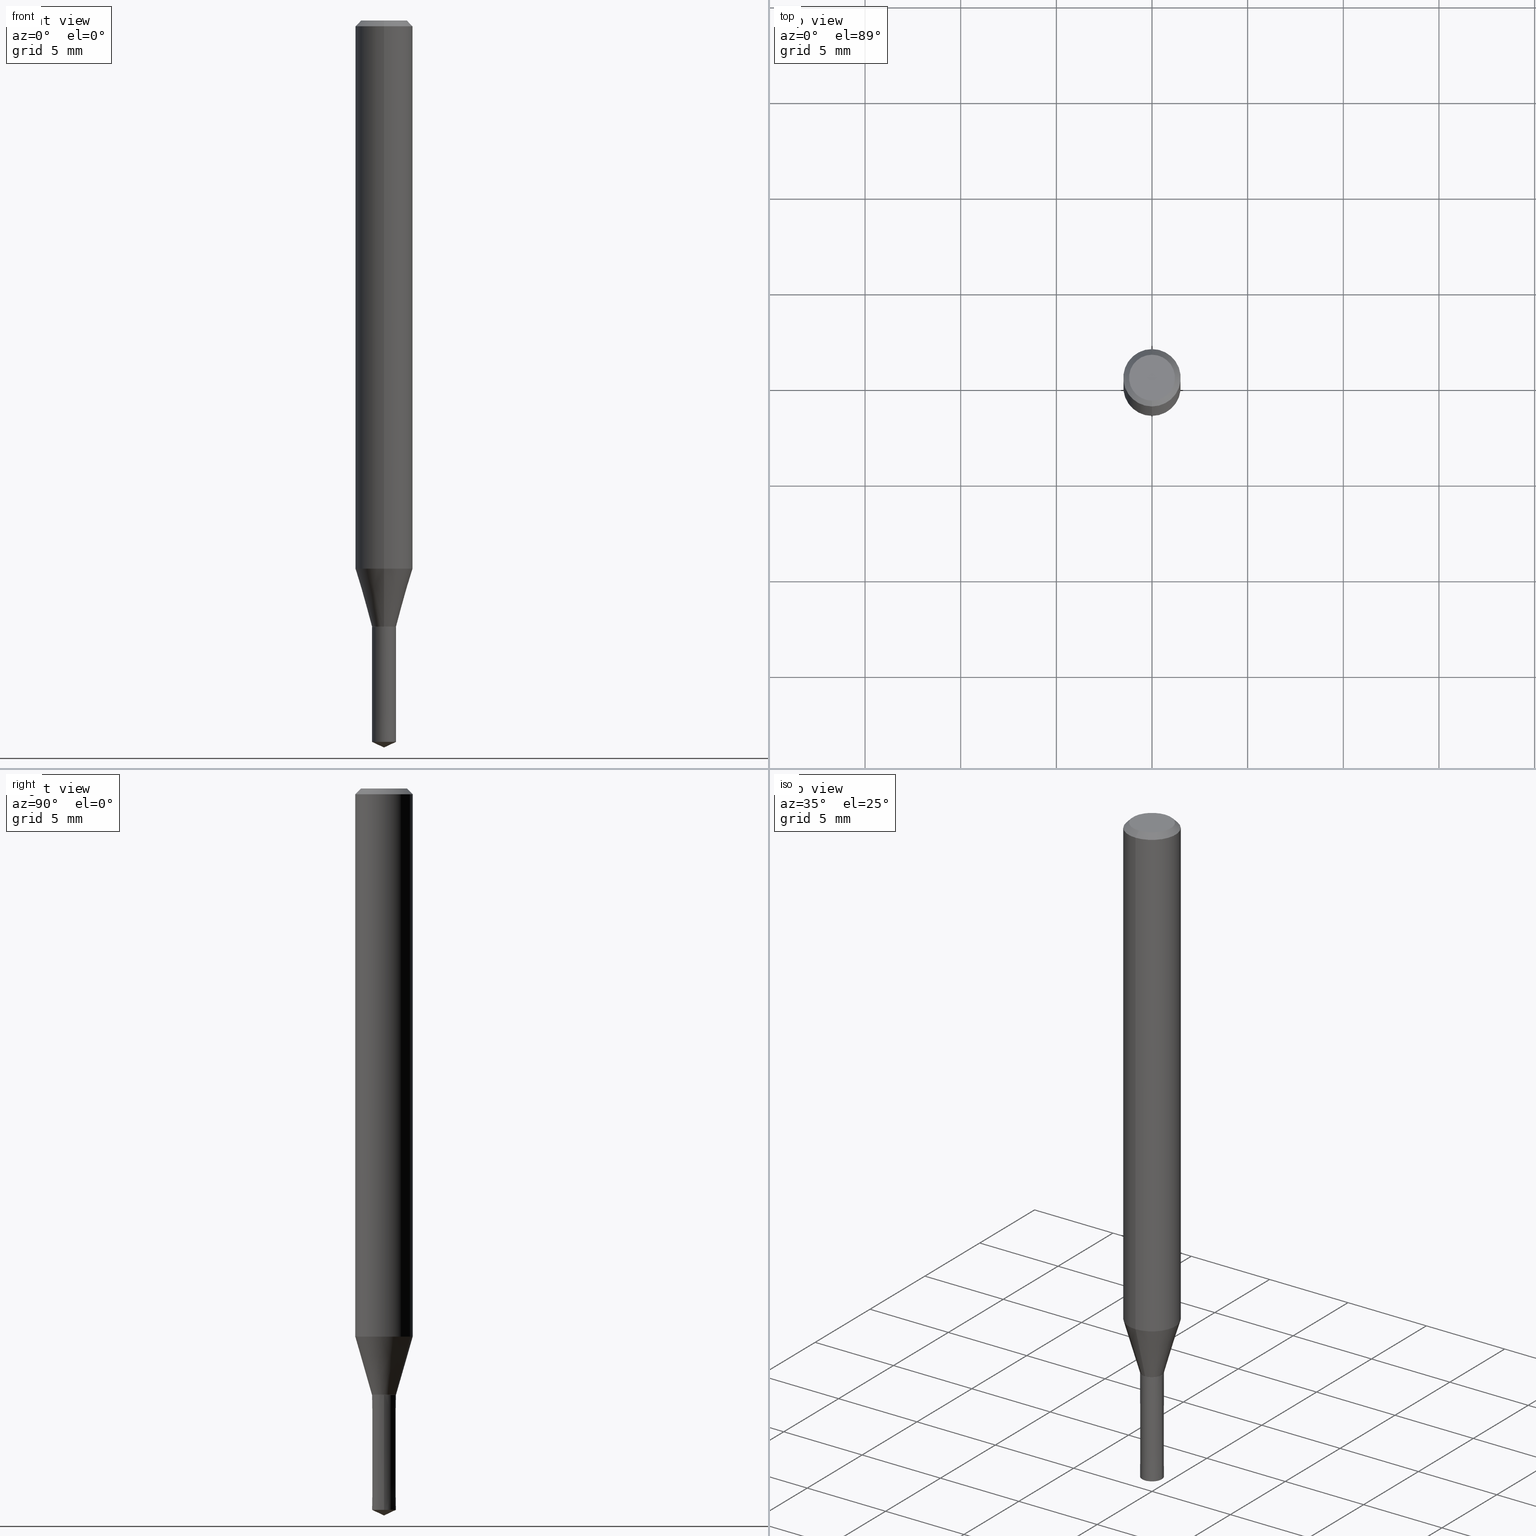
[diagram: canonical four-view strip — front | top / right | iso, engineering-drawing reading convention]
A machine part, canonical four-view strip (front | top / right | iso — engineering-drawing reading convention). The complete STEP part file that produces these views, byte-faithful:
ISO-10303-21;
HEADER;
FILE_DESCRIPTION(('no description'),'unknown implementation level');
FILE_NAME('UTDSX2125-063-Huellk.stp','  ',('CIMSOURCE GmbH'),('CADClick - KiM GmbH - www.kimweb.de'),'unknown preprocess','ACIS','unknown authorization');
FILE_SCHEMA(('automotive_design'));
ENDSEC;
DATA;
#1=MECHANICAL_DESIGN_GEOMETRIC_PRESENTATION_REPRESENTATION(' ',(#14,#15,#16,#17,#18,#19,#20,#21,#22,#23,#24,#25,#26,#27,#28,#29,#30,#31,#32,#33,#34,#35,#36,#37,#38,#39,#40,#41,#42,#43,#44,#45,#46,#47,#48,#49,#50,#51,#52,#53,#54,#55,#56,#57,#58,#59,#60,#61,#62,#63,#64,#65,#66,#67,#68,#69,#70,#71),#10);
#2=PRODUCT_DEFINITION_CONTEXT('',#72,'design');
#3=APPLICATION_PROTOCOL_DEFINITION('INTERNATIONAL STANDARD','automotive_design',1994,#72);
#4=PRODUCT_CATEGORY_RELATIONSHIP('NONE','NONE',#73,#74);
#5=SHAPE_DEFINITION_REPRESENTATION(#75,#76);
#6=PRODUCT_DEFINITION_CONTEXT('',#77,'design');
#7=APPLICATION_PROTOCOL_DEFINITION('INTERNATIONAL STANDARD','automotive_design',1994,#77);
#8=PRODUCT_CATEGORY_RELATIONSHIP('NONE','NONE',#78,#79);
#9=SHAPE_DEFINITION_REPRESENTATION(#80,#81);
#10= (GEOMETRIC_REPRESENTATION_CONTEXT(3)GLOBAL_UNCERTAINTY_ASSIGNED_CONTEXT((#84))GLOBAL_UNIT_ASSIGNED_CONTEXT((#86,#87,#88))REPRESENTATION_CONTEXT('NONE','WORKSPACE'));
#14=STYLED_ITEM('',(#90),#91);
#15=STYLED_ITEM('',(#92),#93);
#16=STYLED_ITEM('',(#94),#95);
#17=STYLED_ITEM('',(#96),#97);
#18=STYLED_ITEM('',(#98),#99);
#19=STYLED_ITEM('',(#100),#101);
#20=STYLED_ITEM('',(#102),#103);
#21=STYLED_ITEM('',(#104),#105);
#22=STYLED_ITEM('',(#106),#107);
#23=STYLED_ITEM('',(#108),#109);
#24=STYLED_ITEM('',(#110),#111);
#25=STYLED_ITEM('',(#112),#113);
#26=STYLED_ITEM('',(#114),#115);
#27=STYLED_ITEM('',(#116),#117);
#28=STYLED_ITEM('',(#118),#119);
#29=STYLED_ITEM('',(#120),#121);
#30=STYLED_ITEM('',(#122),#123);
#31=STYLED_ITEM('',(#124),#125);
#32=STYLED_ITEM('',(#126),#127);
#33=STYLED_ITEM('',(#128),#129);
#34=STYLED_ITEM('',(#130),#131);
#35=STYLED_ITEM('',(#132),#133);
#36=STYLED_ITEM('',(#134),#135);
#37=STYLED_ITEM('',(#136),#137);
#38=STYLED_ITEM('',(#138),#139);
#39=STYLED_ITEM('',(#140),#141);
#40=STYLED_ITEM('',(#142),#143);
#41=STYLED_ITEM('',(#144),#145);
#42=STYLED_ITEM('',(#146),#147);
#43=STYLED_ITEM('',(#148),#149);
#44=STYLED_ITEM('',(#150),#151);
#45=STYLED_ITEM('',(#152),#153);
#46=STYLED_ITEM('',(#154),#155);
#47=STYLED_ITEM('',(#156),#157);
#48=STYLED_ITEM('',(#158),#159);
#49=STYLED_ITEM('',(#160),#161);
#50=STYLED_ITEM('',(#162),#163);
#51=STYLED_ITEM('',(#164),#165);
#52=STYLED_ITEM('',(#166),#167);
#53=STYLED_ITEM('',(#168),#169);
#54=STYLED_ITEM('',(#170),#171);
#55=STYLED_ITEM('',(#172),#173);
#56=STYLED_ITEM('',(#174),#175);
#57=STYLED_ITEM('',(#176),#177);
#58=STYLED_ITEM('',(#178),#179);
#59=STYLED_ITEM('',(#180),#181);
#60=STYLED_ITEM('',(#182),#183);
#61=STYLED_ITEM('',(#184),#185);
#62=STYLED_ITEM('',(#186),#187);
#63=STYLED_ITEM('',(#188),#189);
#64=STYLED_ITEM('',(#190),#191);
#65=STYLED_ITEM('',(#192),#193);
#66=STYLED_ITEM('',(#194),#195);
#67=STYLED_ITEM('',(#196),#197);
#68=STYLED_ITEM('',(#198),#199);
#69=STYLED_ITEM('',(#200),#201);
#70=STYLED_ITEM('',(#202),#203);
#71=STYLED_ITEM('',(#204),#205);
#72=APPLICATION_CONTEXT(' ');
#73=PRODUCT_CATEGORY('part','NONE');
#74=PRODUCT_RELATED_PRODUCT_CATEGORY('detail',' ',(#206));
#75=PRODUCT_DEFINITION_SHAPE('NONE','NONE',#207);
#76=ADVANCED_BREP_SHAPE_REPRESENTATION('1',(#163,#208),#10);
#77=APPLICATION_CONTEXT(' ');
#78=PRODUCT_CATEGORY('part','NONE');
#79=PRODUCT_RELATED_PRODUCT_CATEGORY('detail',' ',(#209));
#80=PRODUCT_DEFINITION_SHAPE('NONE','NONE',#210);
#81=ADVANCED_BREP_SHAPE_REPRESENTATION('2',(#191,#211),#10);
#84=UNCERTAINTY_MEASURE_WITH_UNIT(LENGTH_MEASURE(1.0E-006),#86,'','');
#86= (CONVERSION_BASED_UNIT('MILLIMETRE',#214)LENGTH_UNIT()NAMED_UNIT(#217));
#87= (NAMED_UNIT(#219)PLANE_ANGLE_UNIT()SI_UNIT($,.RADIAN.));
#88= (NAMED_UNIT(#219)SOLID_ANGLE_UNIT()SI_UNIT($,.STERADIAN.));
#90=PRESENTATION_STYLE_ASSIGNMENT((#225));
#91=EDGE_CURVE('',#185,#179,#226,.T.);
#92=PRESENTATION_STYLE_ASSIGNMENT((#227));
#93=EDGE_CURVE('',#113,#181,#228,.T.);
#94=PRESENTATION_STYLE_ASSIGNMENT((#229));
#95=ADVANCED_FACE('',(#230),#231,.T.);
#96=PRESENTATION_STYLE_ASSIGNMENT((#232));
#97=EDGE_CURVE('',#107,#175,#233,.T.);
#98=PRESENTATION_STYLE_ASSIGNMENT((#234));
#99=ADVANCED_FACE('',(#235),#236,.T.);
#100=PRESENTATION_STYLE_ASSIGNMENT((#237));
#101=EDGE_CURVE('',#133,#127,#238,.T.);
#102=PRESENTATION_STYLE_ASSIGNMENT((#239));
#103=EDGE_CURVE('',#175,#107,#240,.T.);
#104=PRESENTATION_STYLE_ASSIGNMENT((#241));
#105=EDGE_CURVE('',#181,#193,#242,.T.);
#106=PRESENTATION_STYLE_ASSIGNMENT((#243));
#107=VERTEX_POINT('',#244);
#108=PRESENTATION_STYLE_ASSIGNMENT((#245));
#109=VERTEX_POINT('',#246);
#110=PRESENTATION_STYLE_ASSIGNMENT((#247));
#111=ADVANCED_FACE('',(#248),#249,.T.);
#112=PRESENTATION_STYLE_ASSIGNMENT((#250));
#113=VERTEX_POINT('',#251);
#114=PRESENTATION_STYLE_ASSIGNMENT((#252));
#115=EDGE_CURVE('',#157,#193,#253,.T.);
#116=PRESENTATION_STYLE_ASSIGNMENT((#254));
#117=EDGE_CURVE('',#137,#157,#255,.T.);
#118=PRESENTATION_STYLE_ASSIGNMENT((#256));
#119=EDGE_CURVE('',#193,#137,#257,.T.);
#120=PRESENTATION_STYLE_ASSIGNMENT((#258));
#121=ADVANCED_FACE('',(#259),#260,.T.);
#122=PRESENTATION_STYLE_ASSIGNMENT((#261));
#123=ADVANCED_FACE('',(#262),#263,.T.);
#124=PRESENTATION_STYLE_ASSIGNMENT((#264));
#125=ADVANCED_FACE('',(#265),#266,.T.);
#126=PRESENTATION_STYLE_ASSIGNMENT((#267));
#127=VERTEX_POINT('',#268);
#128=PRESENTATION_STYLE_ASSIGNMENT((#269));
#129=EDGE_CURVE('',#107,#179,#270,.T.);
#130=PRESENTATION_STYLE_ASSIGNMENT((#271));
#131=ADVANCED_FACE('',(#272),#273,.T.);
#132=PRESENTATION_STYLE_ASSIGNMENT((#274));
#133=VERTEX_POINT('',#275);
#134=PRESENTATION_STYLE_ASSIGNMENT((#276));
#135=VERTEX_POINT('',#277);
#136=PRESENTATION_STYLE_ASSIGNMENT((#278));
#137=VERTEX_POINT('',#279);
#138=PRESENTATION_STYLE_ASSIGNMENT((#280));
#139=EDGE_CURVE('',#135,#195,#281,.T.);
#140=PRESENTATION_STYLE_ASSIGNMENT((#282));
#141=ADVANCED_FACE('',(#283),#284,.T.);
#142=PRESENTATION_STYLE_ASSIGNMENT((#285));
#143=ADVANCED_FACE('',(#286),#287,.T.);
#144=PRESENTATION_STYLE_ASSIGNMENT((#288));
#145=EDGE_CURVE('',#177,#109,#289,.T.);
#146=PRESENTATION_STYLE_ASSIGNMENT((#290));
#147=EDGE_CURVE('',#179,#185,#291,.T.);
#148=PRESENTATION_STYLE_ASSIGNMENT((#292));
#149=EDGE_CURVE('',#193,#157,#293,.T.);
#150=PRESENTATION_STYLE_ASSIGNMENT((#294));
#151=EDGE_CURVE('',#127,#195,#295,.T.);
#152=PRESENTATION_STYLE_ASSIGNMENT((#296));
#153=EDGE_CURVE('',#195,#135,#297,.T.);
#154=PRESENTATION_STYLE_ASSIGNMENT((#298));
#155=EDGE_CURVE('',#181,#113,#299,.T.);
#156=PRESENTATION_STYLE_ASSIGNMENT((#300));
#157=VERTEX_POINT('',#301);
#158=PRESENTATION_STYLE_ASSIGNMENT((#302));
#159=EDGE_CURVE('',#185,#175,#303,.T.);
#160=PRESENTATION_STYLE_ASSIGNMENT((#304));
#161=EDGE_CURVE('',#135,#177,#305,.T.);
#162=PRESENTATION_STYLE_ASSIGNMENT((#306));
#163=MANIFOLD_SOLID_BREP('1',#307);
#164=PRESENTATION_STYLE_ASSIGNMENT((#308));
#165=ADVANCED_FACE('',(#309),#310,.T.);
#166=PRESENTATION_STYLE_ASSIGNMENT((#311));
#167=EDGE_CURVE('',#109,#185,#312,.T.);
#168=PRESENTATION_STYLE_ASSIGNMENT((#313));
#169=EDGE_CURVE('',#127,#177,#314,.T.);
#170=PRESENTATION_STYLE_ASSIGNMENT((#315));
#171=ADVANCED_FACE('',(#316),#317,.T.);
#172=PRESENTATION_STYLE_ASSIGNMENT((#318));
#173=ADVANCED_FACE('',(#319),#320,.T.);
#174=PRESENTATION_STYLE_ASSIGNMENT((#321));
#175=VERTEX_POINT('',#322);
#176=PRESENTATION_STYLE_ASSIGNMENT((#323));
#177=VERTEX_POINT('',#324);
#178=PRESENTATION_STYLE_ASSIGNMENT((#325));
#179=VERTEX_POINT('',#326);
#180=PRESENTATION_STYLE_ASSIGNMENT((#327));
#181=VERTEX_POINT('',#328);
#182=PRESENTATION_STYLE_ASSIGNMENT((#329));
#183=ADVANCED_FACE('',(#330),#331,.T.);
#184=PRESENTATION_STYLE_ASSIGNMENT((#332));
#185=VERTEX_POINT('',#333);
#186=PRESENTATION_STYLE_ASSIGNMENT((#334));
#187=EDGE_CURVE('',#179,#133,#335,.T.);
#188=PRESENTATION_STYLE_ASSIGNMENT((#336));
#189=EDGE_CURVE('',#109,#133,#337,.T.);
#190=PRESENTATION_STYLE_ASSIGNMENT((#338));
#191=MANIFOLD_SOLID_BREP('2',#339);
#192=PRESENTATION_STYLE_ASSIGNMENT((#340));
#193=VERTEX_POINT('',#341);
#194=PRESENTATION_STYLE_ASSIGNMENT((#342));
#195=VERTEX_POINT('',#343);
#196=PRESENTATION_STYLE_ASSIGNMENT((#344));
#197=EDGE_CURVE('',#177,#127,#345,.T.);
#198=PRESENTATION_STYLE_ASSIGNMENT((#346));
#199=EDGE_CURVE('',#133,#109,#347,.T.);
#200=PRESENTATION_STYLE_ASSIGNMENT((#348));
#201=EDGE_CURVE('',#157,#113,#349,.T.);
#202=PRESENTATION_STYLE_ASSIGNMENT((#350));
#203=ADVANCED_FACE('',(#351),#352,.T.);
#204=PRESENTATION_STYLE_ASSIGNMENT((#353));
#205=ADVANCED_FACE('',(#354),#355,.T.);
#206=PRODUCT('1','1','PART-1-DESC',(#356));
#207=PRODUCT_DEFINITION('NONE','NONE',#357,#2);
#208=AXIS2_PLACEMENT_3D('',#358,#359,#360);
#209=PRODUCT('2','2','PART-2-DESC',(#361));
#210=PRODUCT_DEFINITION('NONE','NONE',#362,#6);
#211=AXIS2_PLACEMENT_3D('',#363,#364,#365);
#214=LENGTH_MEASURE_WITH_UNIT(LENGTH_MEASURE(1.0),#366);
#217=DIMENSIONAL_EXPONENTS(1.0,0.0,0.0,0.0,0.0,0.0,0.0);
#219=DIMENSIONAL_EXPONENTS(0.0,0.0,0.0,0.0,0.0,0.0,0.0);
#225=CURVE_STYLE('',#367,POSITIVE_LENGTH_MEASURE(1.0E-006),#368);
#226=CIRCLE('',#369,1.5);
#227=CURVE_STYLE('',#370,POSITIVE_LENGTH_MEASURE(1.0E-006),#371);
#228=CIRCLE('',#372,0.626);
#229=SURFACE_STYLE_USAGE(.BOTH.,#373);
#230=FACE_OUTER_BOUND('',#374,.T.);
#231=CONICAL_SURFACE('',#375,0.3125,1.13446400899527);
#232=CURVE_STYLE('',#376,POSITIVE_LENGTH_MEASURE(1.0E-006),#377);
#233=CIRCLE('',#378,1.2);
#234=SURFACE_STYLE_USAGE(.BOTH.,#379);
#235=FACE_OUTER_BOUND('',#380,.T.);
#236=CONICAL_SURFACE('',#381,0.3125,1.13446400899527);
#237=CURVE_STYLE('',#382,POSITIVE_LENGTH_MEASURE(1.0E-006),#383);
#238=LINE('',#384,#385);
#239=CURVE_STYLE('',#386,POSITIVE_LENGTH_MEASURE(1.0E-006),#387);
#240=CIRCLE('',#388,1.2);
#241=CURVE_STYLE('',#389,POSITIVE_LENGTH_MEASURE(1.0E-006),#390);
#242=LINE('',#391,#392);
#243=POINT_STYLE(' ',#393,POSITIVE_LENGTH_MEASURE(1.0E-006),#394);
#244=CARTESIAN_POINT('',(0.0,1.2,0.0));
#245=POINT_STYLE(' ',#395,POSITIVE_LENGTH_MEASURE(1.0E-006),#396);
#246=CARTESIAN_POINT('',(1.83690953073357E-016,-1.5,-28.649));
#247=SURFACE_STYLE_USAGE(.BOTH.,#397);
#248=FACE_OUTER_BOUND('',#398,.T.);
#249=CONICAL_SURFACE('',#399,0.6255,0.000166429289528634);
#250=POINT_STYLE(' ',#400,POSITIVE_LENGTH_MEASURE(1.0E-006),#401);
#251=CARTESIAN_POINT('',(0.626,7.66603577492808E-017,-31.7));
#252=CURVE_STYLE('',#402,POSITIVE_LENGTH_MEASURE(1.0E-006),#403);
#253=CIRCLE('',#404,0.625);
#254=CURVE_STYLE('',#405,POSITIVE_LENGTH_MEASURE(1.0E-006),#406);
#255=LINE('',#407,#408);
#256=CURVE_STYLE('',#409,POSITIVE_LENGTH_MEASURE(1.0E-006),#410);
#257=LINE('',#411,#412);
#258=SURFACE_STYLE_USAGE(.BOTH.,#413);
#259=FACE_OUTER_BOUND('',#414,.T.);
#260=CYLINDRICAL_SURFACE('',#415,1.5);
#261=SURFACE_STYLE_USAGE(.BOTH.,#416);
#262=FACE_OUTER_BOUND('',#417,.T.);
#263=CONICAL_SURFACE('',#418,1.0625,0.279370266681243);
#264=SURFACE_STYLE_USAGE(.BOTH.,#419);
#265=FACE_OUTER_BOUND('',#420,.T.);
#266=PLANE('',#421);
#267=POINT_STYLE(' ',#422,POSITIVE_LENGTH_MEASURE(1.0E-006),#423);
#268=CARTESIAN_POINT('',(0.0,0.625,-31.6991339745962));
#269=CURVE_STYLE('',#424,POSITIVE_LENGTH_MEASURE(1.0E-006),#425);
#270=LINE('',#426,#427);
#271=SURFACE_STYLE_USAGE(.BOTH.,#428);
#272=FACE_OUTER_BOUND('',#429,.T.);
#273=CONICAL_SURFACE('',#430,0.6255,0.000166429289528634);
#274=POINT_STYLE(' ',#431,POSITIVE_LENGTH_MEASURE(1.0E-006),#432);
#275=CARTESIAN_POINT('',(0.0,1.5,-28.649));
#276=POINT_STYLE(' ',#433,POSITIVE_LENGTH_MEASURE(1.0E-006),#434);
#277=CARTESIAN_POINT('',(7.65991274315897E-017,-0.6255,-31.7));
#278=POINT_STYLE(' ',#435,POSITIVE_LENGTH_MEASURE(1.0E-006),#436);
#279=CARTESIAN_POINT('',(0.0,0.0,-38.0));
#280=CURVE_STYLE('',#437,POSITIVE_LENGTH_MEASURE(1.0E-006),#438);
#281=CIRCLE('',#439,0.6255);
#282=SURFACE_STYLE_USAGE(.BOTH.,#440);
#283=FACE_OUTER_BOUND('',#441,.T.);
#284=PLANE('',#442);
#285=SURFACE_STYLE_USAGE(.BOTH.,#443);
#286=FACE_OUTER_BOUND('',#444,.T.);
#287=CONICAL_SURFACE('',#445,0.62525,0.52359877559836);
#288=CURVE_STYLE('',#446,POSITIVE_LENGTH_MEASURE(1.0E-006),#447);
#289=LINE('',#448,#449);
#290=CURVE_STYLE('',#450,POSITIVE_LENGTH_MEASURE(1.0E-006),#451);
#291=CIRCLE('',#452,1.5);
#292=CURVE_STYLE('',#453,POSITIVE_LENGTH_MEASURE(1.0E-006),#454);
#293=CIRCLE('',#455,0.625);
#294=CURVE_STYLE('',#456,POSITIVE_LENGTH_MEASURE(1.0E-006),#457);
#295=LINE('',#458,#459);
#296=CURVE_STYLE('',#460,POSITIVE_LENGTH_MEASURE(1.0E-006),#461);
#297=CIRCLE('',#462,0.6255);
#298=CURVE_STYLE('',#463,POSITIVE_LENGTH_MEASURE(1.0E-006),#464);
#299=CIRCLE('',#465,0.626);
#300=POINT_STYLE(' ',#466,POSITIVE_LENGTH_MEASURE(1.0E-006),#467);
#301=CARTESIAN_POINT('',(0.625,7.65378971138986E-017,-37.70855771));
#302=CURVE_STYLE('',#468,POSITIVE_LENGTH_MEASURE(1.0E-006),#469);
#303=LINE('',#470,#471);
#304=CURVE_STYLE('',#472,POSITIVE_LENGTH_MEASURE(1.0E-006),#473);
#305=LINE('',#474,#475);
#306=SURFACE_STYLE_USAGE(.BOTH.,#476);
#307=CLOSED_SHELL('',(#171,#123,#205,#173,#125,#183,#121,#165,#143,#141));
#308=SURFACE_STYLE_USAGE(.BOTH.,#477);
#309=FACE_OUTER_BOUND('',#478,.T.);
#310=CONICAL_SURFACE('',#479,1.0625,0.279370266681243);
#311=CURVE_STYLE('',#480,POSITIVE_LENGTH_MEASURE(1.0E-006),#481);
#312=LINE('',#482,#483);
#313=CURVE_STYLE('',#484,POSITIVE_LENGTH_MEASURE(1.0E-006),#485);
#314=CIRCLE('',#486,0.625);
#315=SURFACE_STYLE_USAGE(.BOTH.,#487);
#316=FACE_OUTER_BOUND('',#488,.T.);
#317=CONICAL_SURFACE('',#489,0.62525,0.52359877559836);
#318=SURFACE_STYLE_USAGE(.BOTH.,#490);
#319=FACE_OUTER_BOUND('',#491,.T.);
#320=CONICAL_SURFACE('',#492,1.35,0.785398163397447);
#321=POINT_STYLE(' ',#493,POSITIVE_LENGTH_MEASURE(1.0E-006),#494);
#322=CARTESIAN_POINT('',(1.46952762458685E-016,-1.2,0.0));
#323=POINT_STYLE(' ',#495,POSITIVE_LENGTH_MEASURE(1.0E-006),#496);
#324=CARTESIAN_POINT('',(7.65378971138986E-017,-0.625,-31.6991339745962));
#325=POINT_STYLE(' ',#497,POSITIVE_LENGTH_MEASURE(1.0E-006),#498);
#326=CARTESIAN_POINT('',(0.0,1.5,-0.300000000000001));
#327=POINT_STYLE(' ',#499,POSITIVE_LENGTH_MEASURE(1.0E-006),#500);
#328=CARTESIAN_POINT('',(-0.626,0.0,-31.7));
#329=SURFACE_STYLE_USAGE(.BOTH.,#501);
#330=FACE_OUTER_BOUND('',#502,.T.);
#331=CONICAL_SURFACE('',#503,1.35,0.785398163397447);
#332=POINT_STYLE(' ',#504,POSITIVE_LENGTH_MEASURE(1.0E-006),#505);
#333=CARTESIAN_POINT('',(1.83690953073357E-016,-1.5,-0.300000000000001));
#334=CURVE_STYLE('',#506,POSITIVE_LENGTH_MEASURE(1.0E-006),#507);
#335=LINE('',#508,#509);
#336=CURVE_STYLE('',#510,POSITIVE_LENGTH_MEASURE(1.0E-006),#511);
#337=CIRCLE('',#512,1.5);
#338=SURFACE_STYLE_USAGE(.BOTH.,#513);
#339=CLOSED_SHELL('',(#95,#111,#203,#131,#99));
#340=POINT_STYLE(' ',#514,POSITIVE_LENGTH_MEASURE(1.0E-006),#515);
#341=CARTESIAN_POINT('',(-0.625,0.0,-37.70855771));
#342=POINT_STYLE(' ',#516,POSITIVE_LENGTH_MEASURE(1.0E-006),#517);
#343=CARTESIAN_POINT('',(0.0,0.6255,-31.7));
#344=CURVE_STYLE('',#518,POSITIVE_LENGTH_MEASURE(1.0E-006),#519);
#345=CIRCLE('',#520,0.625);
#346=CURVE_STYLE('',#521,POSITIVE_LENGTH_MEASURE(1.0E-006),#522);
#347=CIRCLE('',#523,1.5);
#348=CURVE_STYLE('',#524,POSITIVE_LENGTH_MEASURE(1.0E-006),#525);
#349=LINE('',#526,#527);
#350=SURFACE_STYLE_USAGE(.BOTH.,#528);
#351=FACE_OUTER_BOUND('',#529,.T.);
#352=PLANE('',#530);
#353=SURFACE_STYLE_USAGE(.BOTH.,#531);
#354=FACE_OUTER_BOUND('',#532,.T.);
#355=CYLINDRICAL_SURFACE('',#533,1.5);
#356=PRODUCT_CONTEXT('',#72,'mechanical');
#357=PRODUCT_DEFINITION_FORMATION_WITH_SPECIFIED_SOURCE(' ','NONE',#206,.NOT_KNOWN.);
#358=CARTESIAN_POINT('',(0.0,0.0,0.0));
#359=DIRECTION('',(0.0,0.0,1.0));
#360=DIRECTION('',(1.0,0.0,0.0));
#361=PRODUCT_CONTEXT('',#77,'mechanical');
#362=PRODUCT_DEFINITION_FORMATION_WITH_SPECIFIED_SOURCE(' ','NONE',#209,.NOT_KNOWN.);
#363=CARTESIAN_POINT('',(0.0,0.0,0.0));
#364=DIRECTION('',(0.0,0.0,1.0));
#365=DIRECTION('',(1.0,0.0,0.0));
#366= (NAMED_UNIT(#217)LENGTH_UNIT()SI_UNIT(.MILLI.,.METRE.));
#367=DRAUGHTING_PRE_DEFINED_CURVE_FONT('continuous');
#368=COLOUR_RGB('',0.498039215803146,0.498039215803146,0.498039215803146);
#369=AXIS2_PLACEMENT_3D('',#535,#536,#537);
#370=DRAUGHTING_PRE_DEFINED_CURVE_FONT('continuous');
#371=COLOUR_RGB('',0.800000011920929,0.800000011920929,0.800000011920929);
#372=AXIS2_PLACEMENT_3D('',#538,#539,#540);
#373=SURFACE_SIDE_STYLE('',(#541));
#374=EDGE_LOOP('',(#542,#543,#544));
#375=AXIS2_PLACEMENT_3D('',#545,#546,#547);
#376=DRAUGHTING_PRE_DEFINED_CURVE_FONT('continuous');
#377=COLOUR_RGB('',0.498039215803146,0.498039215803146,0.498039215803146);
#378=AXIS2_PLACEMENT_3D('',#548,#549,#550);
#379=SURFACE_SIDE_STYLE('',(#551));
#380=EDGE_LOOP('',(#552,#553,#554));
#381=AXIS2_PLACEMENT_3D('',#555,#556,#557);
#382=DRAUGHTING_PRE_DEFINED_CURVE_FONT('continuous');
#383=COLOUR_RGB('',0.498039215803146,0.498039215803146,0.498039215803146);
#384=CARTESIAN_POINT('',(-1.30114425093628E-016,1.0625,-30.1740669872981));
#385=VECTOR('',#558,1.0);
#386=DRAUGHTING_PRE_DEFINED_CURVE_FONT('continuous');
#387=COLOUR_RGB('',0.498039215803146,0.498039215803146,0.498039215803146);
#388=AXIS2_PLACEMENT_3D('',#559,#560,#561);
#389=DRAUGHTING_PRE_DEFINED_CURVE_FONT('continuous');
#390=COLOUR_RGB('',0.800000011920929,0.800000011920929,0.800000011920929);
#391=CARTESIAN_POINT('',(-0.6255,-7.65991274315897E-017,-34.704278855));
#392=VECTOR('',#562,1.0);
#393=PRE_DEFINED_MARKER('');
#394=COLOUR_RGB('',0.498039215803146,0.498039215803146,0.498039215803146);
#395=PRE_DEFINED_MARKER('');
#396=COLOUR_RGB('',0.498039215803146,0.498039215803146,0.498039215803146);
#397=SURFACE_SIDE_STYLE('',(#563));
#398=EDGE_LOOP('',(#564,#565,#566,#567));
#399=AXIS2_PLACEMENT_3D('',#568,#569,#570);
#400=PRE_DEFINED_MARKER('');
#401=COLOUR_RGB('',0.800000011920929,0.800000011920929,0.800000011920929);
#402=DRAUGHTING_PRE_DEFINED_CURVE_FONT('continuous');
#403=COLOUR_RGB('',0.800000011920929,0.800000011920929,0.800000011920929);
#404=AXIS2_PLACEMENT_3D('',#571,#572,#573);
#405=DRAUGHTING_PRE_DEFINED_CURVE_FONT('continuous');
#406=COLOUR_RGB('',0.800000011920929,0.800000011920929,0.800000011920929);
#407=CARTESIAN_POINT('',(0.3125,3.82689485569493E-017,-37.854278855));
#408=VECTOR('',#574,1.0);
#409=DRAUGHTING_PRE_DEFINED_CURVE_FONT('continuous');
#410=COLOUR_RGB('',0.800000011920929,0.800000011920929,0.800000011920929);
#411=CARTESIAN_POINT('',(-0.3125,-3.82689485569493E-017,-37.854278855));
#412=VECTOR('',#575,1.0);
#413=SURFACE_SIDE_STYLE('',(#576));
#414=EDGE_LOOP('',(#577,#578,#579,#580));
#415=AXIS2_PLACEMENT_3D('',#581,#582,#583);
#416=SURFACE_SIDE_STYLE('',(#584));
#417=EDGE_LOOP('',(#585,#586,#587,#588));
#418=AXIS2_PLACEMENT_3D('',#589,#590,#591);
#419=SURFACE_SIDE_STYLE('',(#592));
#420=EDGE_LOOP('',(#593,#594));
#421=AXIS2_PLACEMENT_3D('',#595,#596,#597);
#422=PRE_DEFINED_MARKER('');
#423=COLOUR_RGB('',0.498039215803146,0.498039215803146,0.498039215803146);
#424=DRAUGHTING_PRE_DEFINED_CURVE_FONT('continuous');
#425=COLOUR_RGB('',0.498039215803146,0.498039215803146,0.498039215803146);
#426=CARTESIAN_POINT('',(-1.65321857766021E-016,1.35,-0.149999999999999));
#427=VECTOR('',#598,1.0);
#428=SURFACE_SIDE_STYLE('',(#599));
#429=EDGE_LOOP('',(#600,#601,#602,#603));
#430=AXIS2_PLACEMENT_3D('',#604,#605,#606);
#431=PRE_DEFINED_MARKER('');
#432=COLOUR_RGB('',0.498039215803146,0.498039215803146,0.498039215803146);
#433=PRE_DEFINED_MARKER('');
#434=COLOUR_RGB('',0.498039215803146,0.498039215803146,0.498039215803146);
#435=PRE_DEFINED_MARKER('');
#436=COLOUR_RGB('',0.800000011920929,0.800000011920929,0.800000011920929);
#437=DRAUGHTING_PRE_DEFINED_CURVE_FONT('continuous');
#438=COLOUR_RGB('',0.498039215803146,0.498039215803146,0.498039215803146);
#439=AXIS2_PLACEMENT_3D('',#607,#608,#609);
#440=SURFACE_SIDE_STYLE('',(#610));
#441=EDGE_LOOP('',(#611,#612));
#442=AXIS2_PLACEMENT_3D('',#613,#614,#615);
#443=SURFACE_SIDE_STYLE('',(#616));
#444=EDGE_LOOP('',(#617,#618,#619,#620));
#445=AXIS2_PLACEMENT_3D('',#621,#622,#623);
#446=DRAUGHTING_PRE_DEFINED_CURVE_FONT('continuous');
#447=COLOUR_RGB('',0.498039215803146,0.498039215803146,0.498039215803146);
#448=CARTESIAN_POINT('',(1.30114425093628E-016,-1.0625,-30.1740669872981));
#449=VECTOR('',#624,1.0);
#450=DRAUGHTING_PRE_DEFINED_CURVE_FONT('continuous');
#451=COLOUR_RGB('',0.498039215803146,0.498039215803146,0.498039215803146);
#452=AXIS2_PLACEMENT_3D('',#625,#626,#627);
#453=DRAUGHTING_PRE_DEFINED_CURVE_FONT('continuous');
#454=COLOUR_RGB('',0.800000011920929,0.800000011920929,0.800000011920929);
#455=AXIS2_PLACEMENT_3D('',#628,#629,#630);
#456=DRAUGHTING_PRE_DEFINED_CURVE_FONT('continuous');
#457=COLOUR_RGB('',0.498039215803146,0.498039215803146,0.498039215803146);
#458=CARTESIAN_POINT('',(-7.65685122727442E-017,0.62525,-31.6995669872981));
#459=VECTOR('',#631,1.0);
#460=DRAUGHTING_PRE_DEFINED_CURVE_FONT('continuous');
#461=COLOUR_RGB('',0.498039215803146,0.498039215803146,0.498039215803146);
#462=AXIS2_PLACEMENT_3D('',#632,#633,#634);
#463=DRAUGHTING_PRE_DEFINED_CURVE_FONT('continuous');
#464=COLOUR_RGB('',0.800000011920929,0.800000011920929,0.800000011920929);
#465=AXIS2_PLACEMENT_3D('',#635,#636,#637);
#466=PRE_DEFINED_MARKER('');
#467=COLOUR_RGB('',0.800000011920929,0.800000011920929,0.800000011920929);
#468=DRAUGHTING_PRE_DEFINED_CURVE_FONT('continuous');
#469=COLOUR_RGB('',0.498039215803146,0.498039215803146,0.498039215803146);
#470=CARTESIAN_POINT('',(1.65321857766021E-016,-1.35,-0.149999999999999));
#471=VECTOR('',#638,1.0);
#472=DRAUGHTING_PRE_DEFINED_CURVE_FONT('continuous');
#473=COLOUR_RGB('',0.498039215803146,0.498039215803146,0.498039215803146);
#474=CARTESIAN_POINT('',(7.65685122727441E-017,-0.62525,-31.6995669872981));
#475=VECTOR('',#639,1.0);
#476=SURFACE_SIDE_STYLE('',(#640));
#477=SURFACE_SIDE_STYLE('',(#641));
#478=EDGE_LOOP('',(#642,#643,#644,#645));
#479=AXIS2_PLACEMENT_3D('',#646,#647,#648);
#480=DRAUGHTING_PRE_DEFINED_CURVE_FONT('continuous');
#481=COLOUR_RGB('',0.498039215803146,0.498039215803146,0.498039215803146);
#482=CARTESIAN_POINT('',(1.83690953073357E-016,-1.5,-14.4745));
#483=VECTOR('',#649,1.0);
#484=DRAUGHTING_PRE_DEFINED_CURVE_FONT('continuous');
#485=COLOUR_RGB('',0.498039215803146,0.498039215803146,0.498039215803146);
#486=AXIS2_PLACEMENT_3D('',#650,#651,#652);
#487=SURFACE_SIDE_STYLE('',(#653));
#488=EDGE_LOOP('',(#654,#655,#656,#657));
#489=AXIS2_PLACEMENT_3D('',#658,#659,#660);
#490=SURFACE_SIDE_STYLE('',(#661));
#491=EDGE_LOOP('',(#662,#663,#664,#665));
#492=AXIS2_PLACEMENT_3D('',#666,#667,#668);
#493=PRE_DEFINED_MARKER('');
#494=COLOUR_RGB('',0.498039215803146,0.498039215803146,0.498039215803146);
#495=PRE_DEFINED_MARKER('');
#496=COLOUR_RGB('',0.498039215803146,0.498039215803146,0.498039215803146);
#497=PRE_DEFINED_MARKER('');
#498=COLOUR_RGB('',0.498039215803146,0.498039215803146,0.498039215803146);
#499=PRE_DEFINED_MARKER('');
#500=COLOUR_RGB('',0.800000011920929,0.800000011920929,0.800000011920929);
#501=SURFACE_SIDE_STYLE('',(#669));
#502=EDGE_LOOP('',(#670,#671,#672,#673));
#503=AXIS2_PLACEMENT_3D('',#674,#675,#676);
#504=PRE_DEFINED_MARKER('');
#505=COLOUR_RGB('',0.498039215803146,0.498039215803146,0.498039215803146);
#506=DRAUGHTING_PRE_DEFINED_CURVE_FONT('continuous');
#507=COLOUR_RGB('',0.498039215803146,0.498039215803146,0.498039215803146);
#508=CARTESIAN_POINT('',(-1.83690953073357E-016,1.5,-14.4745));
#509=VECTOR('',#677,1.0);
#510=DRAUGHTING_PRE_DEFINED_CURVE_FONT('continuous');
#511=COLOUR_RGB('',0.498039215803146,0.498039215803146,0.498039215803146);
#512=AXIS2_PLACEMENT_3D('',#678,#679,#680);
#513=SURFACE_SIDE_STYLE('',(#681));
#514=PRE_DEFINED_MARKER('');
#515=COLOUR_RGB('',0.800000011920929,0.800000011920929,0.800000011920929);
#516=PRE_DEFINED_MARKER('');
#517=COLOUR_RGB('',0.498039215803146,0.498039215803146,0.498039215803146);
#518=DRAUGHTING_PRE_DEFINED_CURVE_FONT('continuous');
#519=COLOUR_RGB('',0.498039215803146,0.498039215803146,0.498039215803146);
#520=AXIS2_PLACEMENT_3D('',#682,#683,#684);
#521=DRAUGHTING_PRE_DEFINED_CURVE_FONT('continuous');
#522=COLOUR_RGB('',0.498039215803146,0.498039215803146,0.498039215803146);
#523=AXIS2_PLACEMENT_3D('',#685,#686,#687);
#524=DRAUGHTING_PRE_DEFINED_CURVE_FONT('continuous');
#525=COLOUR_RGB('',0.800000011920929,0.800000011920929,0.800000011920929);
#526=CARTESIAN_POINT('',(0.6255,7.65991274315897E-017,-34.704278855));
#527=VECTOR('',#688,1.0);
#528=SURFACE_SIDE_STYLE('',(#689));
#529=EDGE_LOOP('',(#690,#691));
#530=AXIS2_PLACEMENT_3D('',#692,#693,#694);
#531=SURFACE_SIDE_STYLE('',(#695));
#532=EDGE_LOOP('',(#696,#697,#698,#699));
#533=AXIS2_PLACEMENT_3D('',#700,#701,#702);
#535=CARTESIAN_POINT('',(0.0,0.0,-0.300000000000001));
#536=DIRECTION('',(0.0,0.0,-1.0));
#537=DIRECTION('',(0.0,1.0,0.0));
#538=CARTESIAN_POINT('',(0.0,0.0,-31.7));
#539=DIRECTION('',(0.0,0.0,-1.0));
#540=DIRECTION('',(-1.0,0.0,0.0));
#541=SURFACE_STYLE_FILL_AREA(#703);
#542=ORIENTED_EDGE('',*,*,#117,.F.);
#543=ORIENTED_EDGE('',*,*,#119,.F.);
#544=ORIENTED_EDGE('',*,*,#149,.T.);
#545=CARTESIAN_POINT('',(0.0,0.0,-37.854278855));
#546=DIRECTION('',(-0.0,-0.0,1.0));
#547=DIRECTION('',(-1.0,0.0,0.0));
#548=CARTESIAN_POINT('',(0.0,0.0,0.0));
#549=DIRECTION('',(0.0,0.0,-1.0));
#550=DIRECTION('',(0.0,1.0,0.0));
#551=SURFACE_STYLE_FILL_AREA(#704);
#552=ORIENTED_EDGE('',*,*,#117,.T.);
#553=ORIENTED_EDGE('',*,*,#115,.T.);
#554=ORIENTED_EDGE('',*,*,#119,.T.);
#555=CARTESIAN_POINT('',(0.0,0.0,-37.854278855));
#556=DIRECTION('',(-0.0,-0.0,1.0));
#557=DIRECTION('',(-1.0,0.0,0.0));
#558=DIRECTION('',(3.37685673756822E-017,-0.275750385177082,-0.961229278098983));
#559=CARTESIAN_POINT('',(0.0,0.0,0.0));
#560=DIRECTION('',(0.0,0.0,-1.0));
#561=DIRECTION('',(0.0,1.0,0.0));
#562=DIRECTION('',(0.000166429288760322,2.03810364478029E-020,-0.999999986150646));
#563=SURFACE_STYLE_FILL_AREA(#705);
#564=ORIENTED_EDGE('',*,*,#105,.F.);
#565=ORIENTED_EDGE('',*,*,#155,.T.);
#566=ORIENTED_EDGE('',*,*,#201,.F.);
#567=ORIENTED_EDGE('',*,*,#149,.F.);
#568=CARTESIAN_POINT('',(0.0,0.0,-34.704278855));
#569=DIRECTION('',(-0.0,-0.0,1.0));
#570=DIRECTION('',(-1.0,0.0,0.0));
#571=CARTESIAN_POINT('',(0.0,0.0,-37.70855771));
#572=DIRECTION('',(0.0,0.0,-1.0));
#573=DIRECTION('',(-1.0,0.0,0.0));
#574=DIRECTION('',(0.906307785007647,1.10987027203905E-016,0.42261826609191));
#575=DIRECTION('',(0.906307785007647,1.10987027203905E-016,-0.42261826609191));
#576=SURFACE_STYLE_FILL_AREA(#706);
#577=ORIENTED_EDGE('',*,*,#187,.T.);
#578=ORIENTED_EDGE('',*,*,#189,.F.);
#579=ORIENTED_EDGE('',*,*,#167,.T.);
#580=ORIENTED_EDGE('',*,*,#91,.T.);
#581=CARTESIAN_POINT('',(0.0,0.0,-14.4745));
#582=DIRECTION('',(-0.0,-0.0,1.0));
#583=DIRECTION('',(0.0,1.0,0.0));
#584=SURFACE_STYLE_FILL_AREA(#707);
#585=ORIENTED_EDGE('',*,*,#101,.F.);
#586=ORIENTED_EDGE('',*,*,#199,.T.);
#587=ORIENTED_EDGE('',*,*,#145,.F.);
#588=ORIENTED_EDGE('',*,*,#169,.F.);
#589=CARTESIAN_POINT('',(0.0,0.0,-30.1740669872981));
#590=DIRECTION('',(-0.0,-0.0,1.0));
#591=DIRECTION('',(0.0,1.0,0.0));
#592=SURFACE_STYLE_FILL_AREA(#708);
#593=ORIENTED_EDGE('',*,*,#97,.F.);
#594=ORIENTED_EDGE('',*,*,#103,.F.);
#595=CARTESIAN_POINT('',(0.0,0.6,0.0));
#596=DIRECTION('',(-0.0,0.0,1.0));
#597=DIRECTION('',(0.0,-1.0,0.0));
#598=DIRECTION('',(-8.65927457071934E-017,0.707106781186546,-0.707106781186549));
#599=SURFACE_STYLE_FILL_AREA(#709);
#600=ORIENTED_EDGE('',*,*,#105,.T.);
#601=ORIENTED_EDGE('',*,*,#115,.F.);
#602=ORIENTED_EDGE('',*,*,#201,.T.);
#603=ORIENTED_EDGE('',*,*,#93,.T.);
#604=CARTESIAN_POINT('',(0.0,0.0,-34.704278855));
#605=DIRECTION('',(-0.0,-0.0,1.0));
#606=DIRECTION('',(-1.0,0.0,0.0));
#607=CARTESIAN_POINT('',(0.0,0.0,-31.7));
#608=DIRECTION('',(0.0,0.0,-1.0));
#609=DIRECTION('',(0.0,1.0,0.0));
#610=SURFACE_STYLE_FILL_AREA(#710);
#611=ORIENTED_EDGE('',*,*,#153,.T.);
#612=ORIENTED_EDGE('',*,*,#139,.T.);
#613=CARTESIAN_POINT('',(0.0,0.31275,-31.7));
#614=DIRECTION('',(0.0,0.0,-1.0));
#615=DIRECTION('',(0.0,1.0,0.0));
#616=SURFACE_STYLE_FILL_AREA(#711);
#617=ORIENTED_EDGE('',*,*,#151,.T.);
#618=ORIENTED_EDGE('',*,*,#139,.F.);
#619=ORIENTED_EDGE('',*,*,#161,.T.);
#620=ORIENTED_EDGE('',*,*,#197,.T.);
#621=CARTESIAN_POINT('',(0.0,0.0,-31.6995669872981));
#622=DIRECTION('',(0.0,-0.0,-1.0));
#623=DIRECTION('',(0.0,1.0,0.0));
#624=DIRECTION('',(3.37685673756822E-017,-0.275750385177082,0.961229278098983));
#625=CARTESIAN_POINT('',(0.0,0.0,-0.300000000000001));
#626=DIRECTION('',(0.0,0.0,-1.0));
#627=DIRECTION('',(0.0,1.0,0.0));
#628=CARTESIAN_POINT('',(0.0,0.0,-37.70855771));
#629=DIRECTION('',(0.0,0.0,-1.0));
#630=DIRECTION('',(-1.0,0.0,0.0));
#631=DIRECTION('',(-6.12303176911252E-017,0.500000000000052,-0.866025403784409));
#632=CARTESIAN_POINT('',(0.0,0.0,-31.7));
#633=DIRECTION('',(0.0,0.0,-1.0));
#634=DIRECTION('',(0.0,1.0,0.0));
#635=CARTESIAN_POINT('',(0.0,0.0,-31.7));
#636=DIRECTION('',(0.0,0.0,-1.0));
#637=DIRECTION('',(-1.0,0.0,0.0));
#638=DIRECTION('',(-8.65927457071934E-017,0.707106781186546,0.707106781186549));
#639=DIRECTION('',(-6.12303176911252E-017,0.500000000000052,0.866025403784409));
#640=SURFACE_STYLE_FILL_AREA(#712);
#641=SURFACE_STYLE_FILL_AREA(#713);
#642=ORIENTED_EDGE('',*,*,#101,.T.);
#643=ORIENTED_EDGE('',*,*,#197,.F.);
#644=ORIENTED_EDGE('',*,*,#145,.T.);
#645=ORIENTED_EDGE('',*,*,#189,.T.);
#646=CARTESIAN_POINT('',(0.0,0.0,-30.1740669872981));
#647=DIRECTION('',(-0.0,-0.0,1.0));
#648=DIRECTION('',(0.0,1.0,0.0));
#649=DIRECTION('',(-0.0,-0.0,1.0));
#650=CARTESIAN_POINT('',(0.0,0.0,-31.6991339745962));
#651=DIRECTION('',(0.0,0.0,-1.0));
#652=DIRECTION('',(0.0,1.0,0.0));
#653=SURFACE_STYLE_FILL_AREA(#714);
#654=ORIENTED_EDGE('',*,*,#151,.F.);
#655=ORIENTED_EDGE('',*,*,#169,.T.);
#656=ORIENTED_EDGE('',*,*,#161,.F.);
#657=ORIENTED_EDGE('',*,*,#153,.F.);
#658=CARTESIAN_POINT('',(0.0,0.0,-31.6995669872981));
#659=DIRECTION('',(0.0,-0.0,-1.0));
#660=DIRECTION('',(0.0,1.0,0.0));
#661=SURFACE_STYLE_FILL_AREA(#715);
#662=ORIENTED_EDGE('',*,*,#129,.F.);
#663=ORIENTED_EDGE('',*,*,#97,.T.);
#664=ORIENTED_EDGE('',*,*,#159,.F.);
#665=ORIENTED_EDGE('',*,*,#147,.F.);
#666=CARTESIAN_POINT('',(0.0,0.0,-0.149999999999999));
#667=DIRECTION('',(0.0,-0.0,-1.0));
#668=DIRECTION('',(0.0,1.0,0.0));
#669=SURFACE_STYLE_FILL_AREA(#716);
#670=ORIENTED_EDGE('',*,*,#129,.T.);
#671=ORIENTED_EDGE('',*,*,#91,.F.);
#672=ORIENTED_EDGE('',*,*,#159,.T.);
#673=ORIENTED_EDGE('',*,*,#103,.T.);
#674=CARTESIAN_POINT('',(0.0,0.0,-0.149999999999999));
#675=DIRECTION('',(0.0,-0.0,-1.0));
#676=DIRECTION('',(0.0,1.0,0.0));
#677=DIRECTION('',(0.0,0.0,-1.0));
#678=CARTESIAN_POINT('',(0.0,0.0,-28.649));
#679=DIRECTION('',(0.0,0.0,-1.0));
#680=DIRECTION('',(0.0,1.0,0.0));
#681=SURFACE_STYLE_FILL_AREA(#717);
#682=CARTESIAN_POINT('',(0.0,0.0,-31.6991339745962));
#683=DIRECTION('',(0.0,0.0,-1.0));
#684=DIRECTION('',(0.0,1.0,0.0));
#685=CARTESIAN_POINT('',(0.0,0.0,-28.649));
#686=DIRECTION('',(0.0,0.0,-1.0));
#687=DIRECTION('',(0.0,1.0,0.0));
#688=DIRECTION('',(0.000166429288760322,2.03810364478029E-020,0.999999986150646));
#689=SURFACE_STYLE_FILL_AREA(#718);
#690=ORIENTED_EDGE('',*,*,#155,.F.);
#691=ORIENTED_EDGE('',*,*,#93,.F.);
#692=CARTESIAN_POINT('',(-0.313,0.0,-31.7));
#693=DIRECTION('',(0.0,0.0,1.0));
#694=DIRECTION('',(1.0,0.0,0.0));
#695=SURFACE_STYLE_FILL_AREA(#719);
#696=ORIENTED_EDGE('',*,*,#187,.F.);
#697=ORIENTED_EDGE('',*,*,#147,.T.);
#698=ORIENTED_EDGE('',*,*,#167,.F.);
#699=ORIENTED_EDGE('',*,*,#199,.F.);
#700=CARTESIAN_POINT('',(0.0,0.0,-14.4745));
#701=DIRECTION('',(-0.0,-0.0,1.0));
#702=DIRECTION('',(0.0,1.0,0.0));
#703=FILL_AREA_STYLE('',(#720));
#704=FILL_AREA_STYLE('',(#721));
#705=FILL_AREA_STYLE('',(#722));
#706=FILL_AREA_STYLE('',(#723));
#707=FILL_AREA_STYLE('',(#724));
#708=FILL_AREA_STYLE('',(#725));
#709=FILL_AREA_STYLE('',(#726));
#710=FILL_AREA_STYLE('',(#727));
#711=FILL_AREA_STYLE('',(#728));
#712=FILL_AREA_STYLE('',(#729));
#713=FILL_AREA_STYLE('',(#730));
#714=FILL_AREA_STYLE('',(#731));
#715=FILL_AREA_STYLE('',(#732));
#716=FILL_AREA_STYLE('',(#733));
#717=FILL_AREA_STYLE('',(#734));
#718=FILL_AREA_STYLE('',(#735));
#719=FILL_AREA_STYLE('',(#736));
#720=FILL_AREA_STYLE_COLOUR('',#737);
#721=FILL_AREA_STYLE_COLOUR('',#738);
#722=FILL_AREA_STYLE_COLOUR('',#739);
#723=FILL_AREA_STYLE_COLOUR('',#740);
#724=FILL_AREA_STYLE_COLOUR('',#741);
#725=FILL_AREA_STYLE_COLOUR('',#742);
#726=FILL_AREA_STYLE_COLOUR('',#743);
#727=FILL_AREA_STYLE_COLOUR('',#744);
#728=FILL_AREA_STYLE_COLOUR('',#745);
#729=FILL_AREA_STYLE_COLOUR('',#746);
#730=FILL_AREA_STYLE_COLOUR('',#747);
#731=FILL_AREA_STYLE_COLOUR('',#748);
#732=FILL_AREA_STYLE_COLOUR('',#749);
#733=FILL_AREA_STYLE_COLOUR('',#750);
#734=FILL_AREA_STYLE_COLOUR('',#751);
#735=FILL_AREA_STYLE_COLOUR('',#752);
#736=FILL_AREA_STYLE_COLOUR('',#753);
#737=COLOUR_RGB('',0.800000011920929,0.800000011920929,0.800000011920929);
#738=COLOUR_RGB('',0.800000011920929,0.800000011920929,0.800000011920929);
#739=COLOUR_RGB('',0.800000011920929,0.800000011920929,0.800000011920929);
#740=COLOUR_RGB('',0.498039215803146,0.498039215803146,0.498039215803146);
#741=COLOUR_RGB('',0.498039215803146,0.498039215803146,0.498039215803146);
#742=COLOUR_RGB('',0.498039215803146,0.498039215803146,0.498039215803146);
#743=COLOUR_RGB('',0.800000011920929,0.800000011920929,0.800000011920929);
#744=COLOUR_RGB('',0.498039215803146,0.498039215803146,0.498039215803146);
#745=COLOUR_RGB('',0.498039215803146,0.498039215803146,0.498039215803146);
#746=COLOUR_RGB('',0.498039215803146,0.498039215803146,0.498039215803146);
#747=COLOUR_RGB('',0.498039215803146,0.498039215803146,0.498039215803146);
#748=COLOUR_RGB('',0.498039215803146,0.498039215803146,0.498039215803146);
#749=COLOUR_RGB('',0.498039215803146,0.498039215803146,0.498039215803146);
#750=COLOUR_RGB('',0.498039215803146,0.498039215803146,0.498039215803146);
#751=COLOUR_RGB('',0.800000011920929,0.800000011920929,0.800000011920929);
#752=COLOUR_RGB('',0.800000011920929,0.800000011920929,0.800000011920929);
#753=COLOUR_RGB('',0.498039215803146,0.498039215803146,0.498039215803146);
#754=AXIS2_PLACEMENT_3D('PCS',#755,#756,#757);
#755=CARTESIAN_POINT('',(0.0,0.0,0.0));
#756=DIRECTION('',(0.0,0.0,1.0));
#757=DIRECTION('',(1.0,0.0,0.0));
#758=AXIS2_PLACEMENT_3D('CIP',#759,#760,#761);
#759=CARTESIAN_POINT('',(0.0,0.0,-38.0));
#760=DIRECTION('',(0.0,0.0,1.0));
#761=DIRECTION('',(1.0,0.0,0.0));
#762=AXIS2_PLACEMENT_3D('CRP',#763,#764,#765);
#763=CARTESIAN_POINT('',(-0.625,0.0,-37.7086));
#764=DIRECTION('',(0.0,0.0,1.0));
#765=DIRECTION('',(1.0,0.0,0.0));
#766=AXIS2_PLACEMENT_3D('MCS',#767,#768,#769);
#767=CARTESIAN_POINT('',(0.0,0.0,-28.649));
#768=DIRECTION('',(0.0,0.0,1.0));
#769=DIRECTION('',(1.0,0.0,0.0));
#770=CONSTRUCTIVE_GEOMETRY_REPRESENTATION_RELATIONSHIP('coordinate systems',$,#76,#771);
#771=CONSTRUCTIVE_GEOMETRY_REPRESENTATION('coordinate systems',(#754,#758,#762,#766),#10);
ENDSEC;
END-ISO-10303-21;
